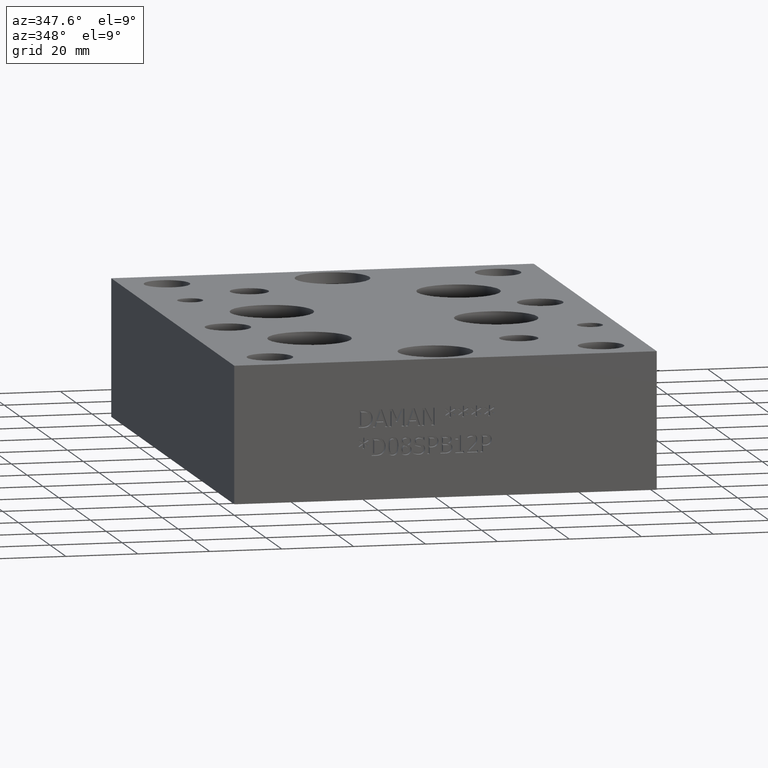
[diagram: clean part render]
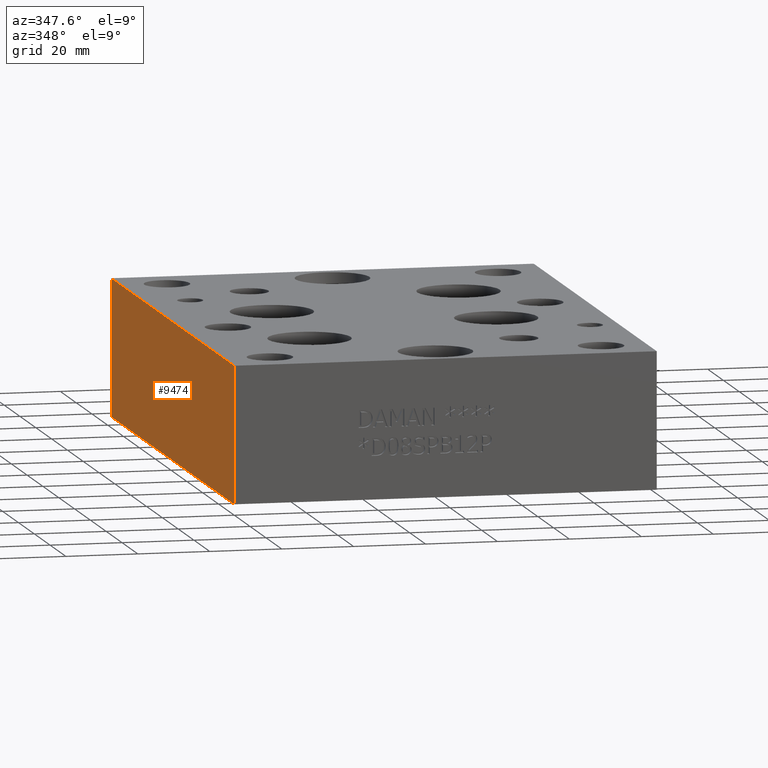
[diagram: same view with one face highlighted and labeled with its STEP entity id]
A machine part, auxiliary view. The second image highlights one B-rep face of the part: STEP entity #9474.
In plain terms, the highlighted planar face has unit normal (-1, 0, 0).
Its self-contained STEP definition (entity closure, byte-faithful):
#541=PLANE('',#9943);
#1019=FACE_OUTER_BOUND('',#1559,.T.);
#1559=EDGE_LOOP('',(#8415,#8416,#8417,#8418));
#1897=LINE('',#14091,#2833);
#2319=LINE('',#15330,#3255);
#2512=LINE('',#16090,#3448);
#2513=LINE('',#16091,#3449);
#2833=VECTOR('',#10433,10.);
#3255=VECTOR('',#11163,10.);
#3448=VECTOR('',#11782,10.);
#3449=VECTOR('',#11783,10.);
#4045=VERTEX_POINT('',#14084);
#4048=VERTEX_POINT('',#14089);
#4359=VERTEX_POINT('',#15329);
#4585=VERTEX_POINT('',#16089);
#5097=EDGE_CURVE('',#4045,#4048,#1897,.T.);
#5563=EDGE_CURVE('',#4359,#4045,#2319,.T.);
#5876=EDGE_CURVE('',#4585,#4048,#2512,.T.);
#5877=EDGE_CURVE('',#4359,#4585,#2513,.T.);
#8415=ORIENTED_EDGE('',*,*,#5563,.T.);
#8416=ORIENTED_EDGE('',*,*,#5097,.T.);
#8417=ORIENTED_EDGE('',*,*,#5876,.F.);
#8418=ORIENTED_EDGE('',*,*,#5877,.F.);
#9474=ADVANCED_FACE('',(#1019),#541,.T.);
#9943=AXIS2_PLACEMENT_3D('',#16088,#11780,#11781);
#10433=DIRECTION('',(0.,0.,1.));
#11163=DIRECTION('',(0.,-1.,0.));
#11780=DIRECTION('center_axis',(-1.,0.,0.));
#11781=DIRECTION('ref_axis',(0.,-1.,0.));
#11782=DIRECTION('',(0.,-1.,0.));
#11783=DIRECTION('',(0.,0.,1.));
#14084=CARTESIAN_POINT('',(0.,0.,0.));
#14089=CARTESIAN_POINT('',(0.,0.,38.1));
#14091=CARTESIAN_POINT('',(0.,0.,0.));
#15329=CARTESIAN_POINT('',(0.,155.575,0.));
#15330=CARTESIAN_POINT('',(0.,155.575,0.));
#16088=CARTESIAN_POINT('Origin',(0.,155.575,0.));
#16089=CARTESIAN_POINT('',(0.,155.575,38.1));
#16090=CARTESIAN_POINT('',(0.,155.575,38.1));
#16091=CARTESIAN_POINT('',(0.,155.575,0.));